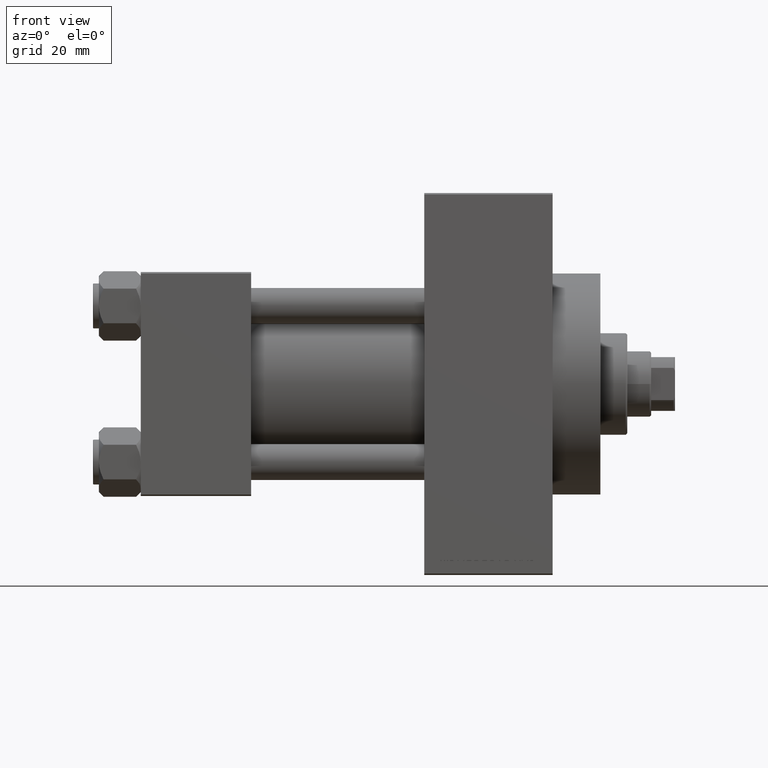
[diagram: clean part render]
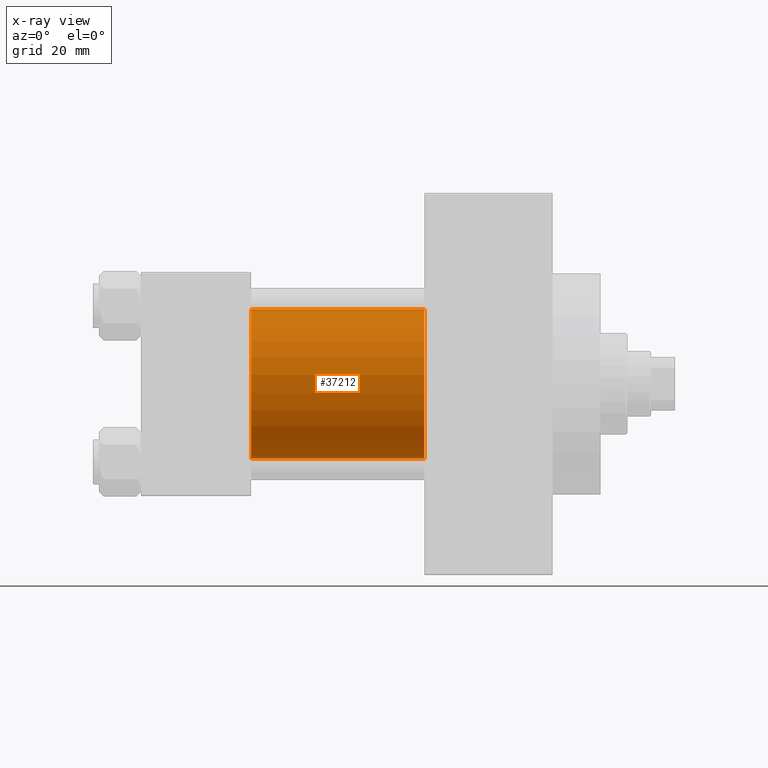
[diagram: x-ray — body ghosted, one internal face saturated and labeled with its STEP entity id]
A machine part, front view, then the same camera in x-ray: the body is ghosted and one INTERNAL B-rep face — a face not visible from any outside direction — is saturated and labeled: STEP entity #37212.
In plain terms, the highlighted cylindrical surface (partial cylindrical patch) has radius 25 mm, axis along (-1, -0, -0).
Its self-contained STEP definition (entity closure, byte-faithful):
#422 = AXIS2_PLACEMENT_3D ( 'NONE', #38535, #12762, #27319 ) ;
#979 = CARTESIAN_POINT ( 'NONE',  ( 37.00000000000000000, 4.595317839031718093E-16, -25.00000000000000000 ) ) ;
#1278 = AXIS2_PLACEMENT_3D ( 'NONE', #42859, #46669, #36165 ) ;
#1727 = CARTESIAN_POINT ( 'NONE',  ( 95.00000000000000000, -2.602085213965210642E-15, 25.00000000000000000 ) ) ;
#7080 = ORIENTED_EDGE ( 'NONE', *, *, #28026, .F. ) ;
#8432 = CARTESIAN_POINT ( 'NONE',  ( 95.00000000000000000, 4.595317839031718093E-16, -25.00000000000000000 ) ) ;
#8865 = ORIENTED_EDGE ( 'NONE', *, *, #40521, .F. ) ;
#10421 = VERTEX_POINT ( 'NONE', #16891 ) ;
#11270 = DIRECTION ( 'NONE',  ( -1.000000000000000000, -0.000000000000000000, -0.000000000000000000 ) ) ;
#12762 = DIRECTION ( 'NONE',  ( 1.000000000000000000, 0.000000000000000000, 0.000000000000000000 ) ) ;
#16891 = CARTESIAN_POINT ( 'NONE',  ( 37.00000000000000000, -2.602085213965210642E-15, 25.00000000000000000 ) ) ;
#18436 = LINE ( 'NONE', #29420, #39132 ) ;
#22532 = VERTEX_POINT ( 'NONE', #26961 ) ;
#22563 = DIRECTION ( 'NONE',  ( 0.000000000000000000, 0.000000000000000000, 1.000000000000000000 ) ) ;
#22977 = DIRECTION ( 'NONE',  ( -1.000000000000000000, -0.000000000000000000, -0.000000000000000000 ) ) ;
#23259 = CARTESIAN_POINT ( 'NONE',  ( 95.00000000000000000, -2.602085213965210642E-15, 0.000000000000000000 ) ) ;
#23379 = CIRCLE ( 'NONE', #1278, 25.00000000000000000 ) ;
#23383 = CIRCLE ( 'NONE', #422, 25.00000000000000000 ) ;
#24525 = VECTOR ( 'NONE', #22977, 1000.000000000000000 ) ;
#25129 = EDGE_CURVE ( 'NONE', #22532, #26092, #41134, .T. ) ;
#26092 = VERTEX_POINT ( 'NONE', #979 ) ;
#26613 = CYLINDRICAL_SURFACE ( 'NONE', #29391, 25.00000000000000000 ) ;
#26961 = CARTESIAN_POINT ( 'NONE',  ( 95.00000000000000000, 4.595317839031718093E-16, -25.00000000000000000 ) ) ;
#27319 = DIRECTION ( 'NONE',  ( 0.000000000000000000, 0.000000000000000000, -1.000000000000000000 ) ) ;
#28026 = EDGE_CURVE ( 'NONE', #36319, #10421, #18436, .T. ) ;
#29391 = AXIS2_PLACEMENT_3D ( 'NONE', #23259, #34002, #22563 ) ;
#29420 = CARTESIAN_POINT ( 'NONE',  ( 95.00000000000000000, -2.602085213965210642E-15, 25.00000000000000000 ) ) ;
#30851 = ORIENTED_EDGE ( 'NONE', *, *, #25129, .T. ) ;
#31727 = ORIENTED_EDGE ( 'NONE', *, *, #37339, .T. ) ;
#34002 = DIRECTION ( 'NONE',  ( -1.000000000000000000, -0.000000000000000000, -0.000000000000000000 ) ) ;
#36165 = DIRECTION ( 'NONE',  ( 0.000000000000000000, 0.000000000000000000, -1.000000000000000000 ) ) ;
#36319 = VERTEX_POINT ( 'NONE', #1727 ) ;
#37212 = ADVANCED_FACE ( 'NONE', ( #44289 ), #26613, .F. ) ;
#37339 = EDGE_CURVE ( 'NONE', #36319, #22532, #23383, .T. ) ;
#38535 = CARTESIAN_POINT ( 'NONE',  ( 95.00000000000000000, -2.602085213965210642E-15, 0.000000000000000000 ) ) ;
#39132 = VECTOR ( 'NONE', #11270, 1000.000000000000000 ) ;
#40521 = EDGE_CURVE ( 'NONE', #10421, #26092, #23379, .T. ) ;
#41134 = LINE ( 'NONE', #8432, #24525 ) ;
#42859 = CARTESIAN_POINT ( 'NONE',  ( 37.00000000000000000, -2.602085213965210642E-15, 0.000000000000000000 ) ) ;
#43618 = EDGE_LOOP ( 'NONE', ( #31727, #30851, #8865, #7080 ) ) ;
#44289 = FACE_OUTER_BOUND ( 'NONE', #43618, .T. ) ;
#46669 = DIRECTION ( 'NONE',  ( 1.000000000000000000, 0.000000000000000000, 0.000000000000000000 ) ) ;